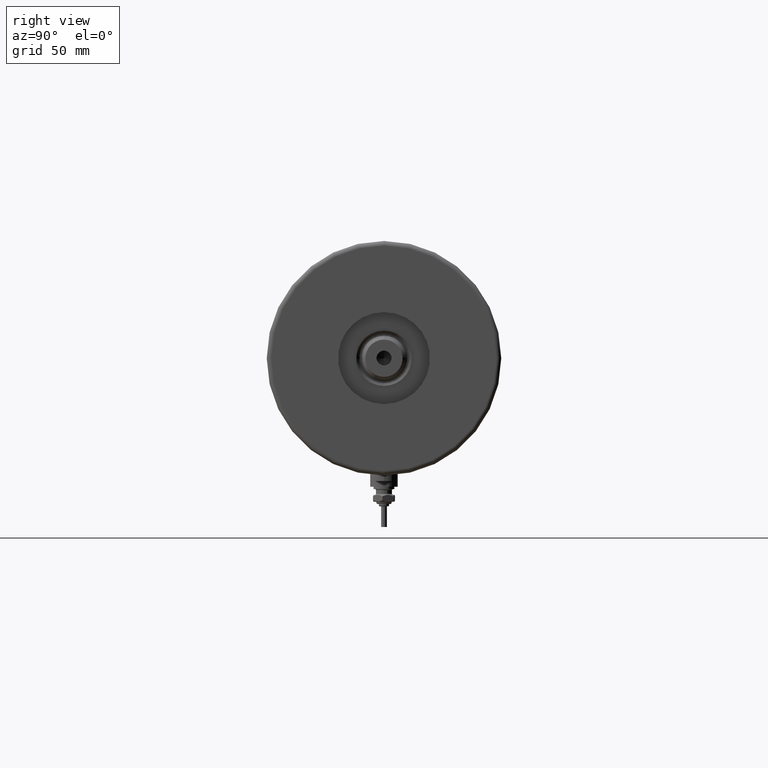
[diagram: clean part render]
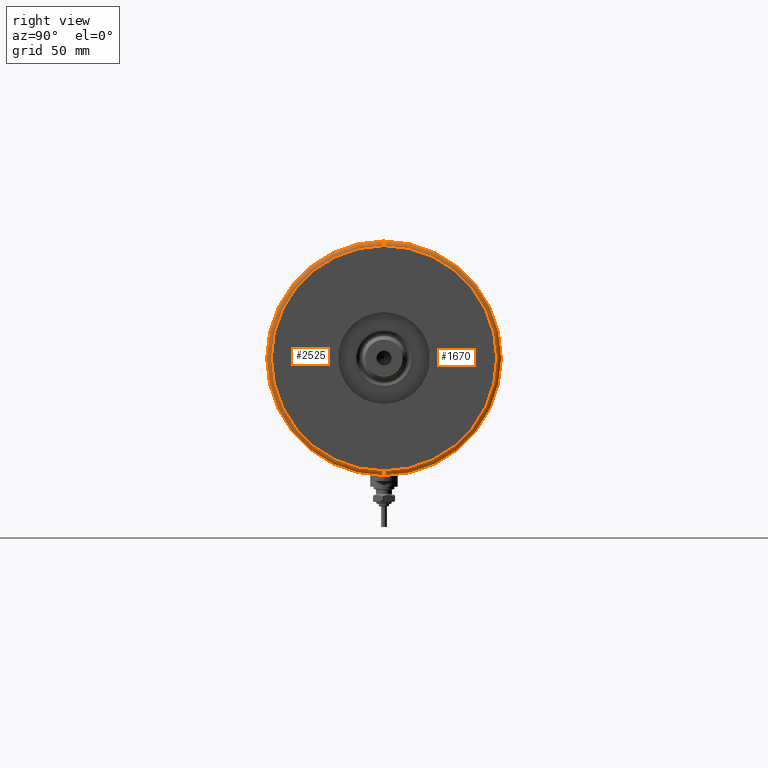
[diagram: same view with one multi-face feature highlighted, each face labeled with its STEP entity id]
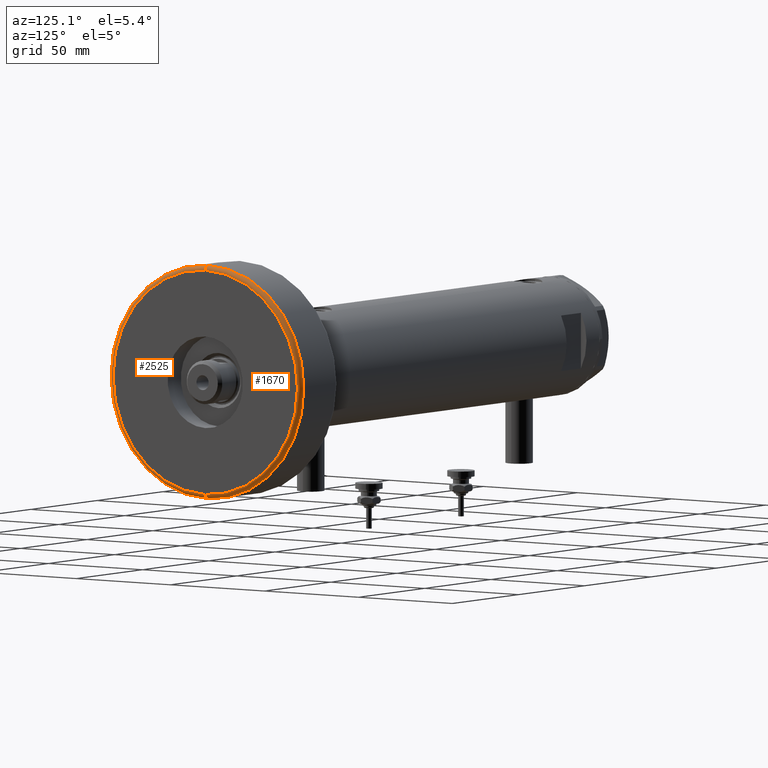
[diagram: same view with one multi-face feature highlighted, each face labeled with its STEP entity id]
A machine part, right view. The highlighted faces form ONE feature: a constant-radius fillet chain: 2 tangent blend faces with common blend radius 2 mm. The faces share edges in the B-rep.
A second angle (auxiliary view) of the same feature is appended — it is thin or edge-on in the first view.
Their STEP definitions:
[1] entity #1670 (Torus):
#199 = CIRCLE ( 'NONE', #3672, 2.000000000000001776 ) ;
#367 = VERTEX_POINT ( 'NONE', #2523 ) ;
#471 = DIRECTION ( 'NONE',  ( 0.000000000000000000, 0.000000000000000000, -1.000000000000000000 ) ) ;
#859 = AXIS2_PLACEMENT_3D ( 'NONE', #1368, #4504, #870 ) ;
#870 = DIRECTION ( 'NONE',  ( 1.000000000000000000, 0.000000000000000000, 0.000000000000000000 ) ) ;
#978 = CARTESIAN_POINT ( 'NONE',  ( 48.99999999999998579, 0.000000000000000000, 26.00000000000000355 ) ) ;
#1231 = DIRECTION ( 'NONE',  ( 1.224646799147353207E-16, 1.000000000000000000, -0.000000000000000000 ) ) ;
#1366 = AXIS2_PLACEMENT_3D ( 'NONE', #2901, #6563, #4453 ) ;
#1368 = CARTESIAN_POINT ( 'NONE',  ( 0.000000000000000000, 0.000000000000000000, 26.00000000000000355 ) ) ;
#1670 = ADVANCED_FACE ( 'NONE', ( #2346 ), #4198, .T. ) ;
#1730 = ORIENTED_EDGE ( 'NONE', *, *, #5157, .F. ) ;
#1987 = ORIENTED_EDGE ( 'NONE', *, *, #3282, .F. ) ;
#2346 = FACE_OUTER_BOUND ( 'NONE', #3834, .T. ) ;
#2523 = CARTESIAN_POINT ( 'NONE',  ( 50.99999999999999289, 6.245698675651499656E-15, 26.00000000000000355 ) ) ;
#2620 = EDGE_CURVE ( 'NONE', #5666, #3372, #199, .T. ) ;
#2901 = CARTESIAN_POINT ( 'NONE',  ( 0.000000000000000000, 0.000000000000000000, 26.00000000000000355 ) ) ;
#3037 = AXIS2_PLACEMENT_3D ( 'NONE', #978, #5108, #471 ) ;
#3143 = AXIS2_PLACEMENT_3D ( 'NONE', #3239, #4867, #3335 ) ;
#3220 = ORIENTED_EDGE ( 'NONE', *, *, #2620, .T. ) ;
#3239 = CARTESIAN_POINT ( 'NONE',  ( 0.000000000000000000, 0.000000000000000000, 28.00000000000000000 ) ) ;
#3282 = EDGE_CURVE ( 'NONE', #5060, #3372, #3885, .T. ) ;
#3335 = DIRECTION ( 'NONE',  ( 1.000000000000000000, 0.000000000000000000, 0.000000000000000000 ) ) ;
#3372 = VERTEX_POINT ( 'NONE', #6051 ) ;
#3672 = AXIS2_PLACEMENT_3D ( 'NONE', #3851, #1231, #5465 ) ;
#3834 = EDGE_LOOP ( 'NONE', ( #5642, #3220, #1987, #1730 ) ) ;
#3851 = CARTESIAN_POINT ( 'NONE',  ( -48.99999999999998579, 6.000769315822029359E-15, 26.00000000000000355 ) ) ;
#3885 = CIRCLE ( 'NONE', #3143, 48.99999999999998579 ) ;
#4004 = CIRCLE ( 'NONE', #859, 50.99999999999999289 ) ;
#4095 = CARTESIAN_POINT ( 'NONE',  ( -50.99999999999999289, 0.000000000000000000, 26.00000000000000355 ) ) ;
#4198 = TOROIDAL_SURFACE ( 'NONE', #1366, 48.99999999999998579, 2.000000000000000000 ) ;
#4453 = DIRECTION ( 'NONE',  ( 1.000000000000000000, 0.000000000000000000, 0.000000000000000000 ) ) ;
#4504 = DIRECTION ( 'NONE',  ( -0.000000000000000000, -0.000000000000000000, -1.000000000000000000 ) ) ;
#4867 = DIRECTION ( 'NONE',  ( 0.000000000000000000, 0.000000000000000000, 1.000000000000000000 ) ) ;
#5060 = VERTEX_POINT ( 'NONE', #5452 ) ;
#5095 = CIRCLE ( 'NONE', #3037, 2.000000000000001776 ) ;
#5108 = DIRECTION ( 'NONE',  ( 0.000000000000000000, -1.000000000000000000, 0.000000000000000000 ) ) ;
#5157 = EDGE_CURVE ( 'NONE', #367, #5060, #5095, .T. ) ;
#5445 = EDGE_CURVE ( 'NONE', #5666, #367, #4004, .T. ) ;
#5452 = CARTESIAN_POINT ( 'NONE',  ( 48.99999999999998579, 0.000000000000000000, 28.00000000000000000 ) ) ;
#5465 = DIRECTION ( 'NONE',  ( -1.000000000000000000, 1.224646799147353454E-16, 0.000000000000000000 ) ) ;
#5642 = ORIENTED_EDGE ( 'NONE', *, *, #5445, .F. ) ;
#5666 = VERTEX_POINT ( 'NONE', #4095 ) ;
#6051 = CARTESIAN_POINT ( 'NONE',  ( -48.99999999999998579, 6.123233995736764507E-15, 28.00000000000000000 ) ) ;
#6563 = DIRECTION ( 'NONE',  ( 0.000000000000000000, 0.000000000000000000, 1.000000000000000000 ) ) ;
[2] entity #2525 (Torus):
#199 = CIRCLE ( 'NONE', #3672, 2.000000000000001776 ) ;
#367 = VERTEX_POINT ( 'NONE', #2523 ) ;
#471 = DIRECTION ( 'NONE',  ( 0.000000000000000000, 0.000000000000000000, -1.000000000000000000 ) ) ;
#528 = CIRCLE ( 'NONE', #3151, 50.99999999999999289 ) ;
#972 = CARTESIAN_POINT ( 'NONE',  ( 0.000000000000000000, 0.000000000000000000, 26.00000000000000355 ) ) ;
#978 = CARTESIAN_POINT ( 'NONE',  ( 48.99999999999998579, 0.000000000000000000, 26.00000000000000355 ) ) ;
#1007 = CARTESIAN_POINT ( 'NONE',  ( 0.000000000000000000, 0.000000000000000000, 28.00000000000000000 ) ) ;
#1231 = DIRECTION ( 'NONE',  ( 1.224646799147353207E-16, 1.000000000000000000, -0.000000000000000000 ) ) ;
#1447 = DIRECTION ( 'NONE',  ( 1.000000000000000000, 0.000000000000000000, 0.000000000000000000 ) ) ;
#1737 = ORIENTED_EDGE ( 'NONE', *, *, #3574, .F. ) ;
#1922 = TOROIDAL_SURFACE ( 'NONE', #4317, 48.99999999999998579, 2.000000000000000000 ) ;
#2221 = EDGE_LOOP ( 'NONE', ( #2345, #1737, #4193, #3190 ) ) ;
#2345 = ORIENTED_EDGE ( 'NONE', *, *, #2620, .F. ) ;
#2523 = CARTESIAN_POINT ( 'NONE',  ( 50.99999999999999289, 6.245698675651499656E-15, 26.00000000000000355 ) ) ;
#2525 = ADVANCED_FACE ( 'NONE', ( #4681 ), #1922, .T. ) ;
#2620 = EDGE_CURVE ( 'NONE', #5666, #3372, #199, .T. ) ;
#2716 = DIRECTION ( 'NONE',  ( 0.000000000000000000, 0.000000000000000000, 1.000000000000000000 ) ) ;
#3037 = AXIS2_PLACEMENT_3D ( 'NONE', #978, #5108, #471 ) ;
#3151 = AXIS2_PLACEMENT_3D ( 'NONE', #972, #3198, #5787 ) ;
#3190 = ORIENTED_EDGE ( 'NONE', *, *, #3999, .F. ) ;
#3198 = DIRECTION ( 'NONE',  ( -0.000000000000000000, -0.000000000000000000, -1.000000000000000000 ) ) ;
#3372 = VERTEX_POINT ( 'NONE', #6051 ) ;
#3421 = DIRECTION ( 'NONE',  ( 1.000000000000000000, 0.000000000000000000, 0.000000000000000000 ) ) ;
#3574 = EDGE_CURVE ( 'NONE', #367, #5666, #528, .T. ) ;
#3672 = AXIS2_PLACEMENT_3D ( 'NONE', #3851, #1231, #5465 ) ;
#3753 = CARTESIAN_POINT ( 'NONE',  ( 0.000000000000000000, 0.000000000000000000, 26.00000000000000355 ) ) ;
#3851 = CARTESIAN_POINT ( 'NONE',  ( -48.99999999999998579, 6.000769315822029359E-15, 26.00000000000000355 ) ) ;
#3999 = EDGE_CURVE ( 'NONE', #3372, #5060, #4872, .T. ) ;
#4095 = CARTESIAN_POINT ( 'NONE',  ( -50.99999999999999289, 0.000000000000000000, 26.00000000000000355 ) ) ;
#4193 = ORIENTED_EDGE ( 'NONE', *, *, #5157, .T. ) ;
#4317 = AXIS2_PLACEMENT_3D ( 'NONE', #3753, #2716, #3421 ) ;
#4331 = AXIS2_PLACEMENT_3D ( 'NONE', #1007, #6120, #1447 ) ;
#4681 = FACE_OUTER_BOUND ( 'NONE', #2221, .T. ) ;
#4872 = CIRCLE ( 'NONE', #4331, 48.99999999999998579 ) ;
#5060 = VERTEX_POINT ( 'NONE', #5452 ) ;
#5095 = CIRCLE ( 'NONE', #3037, 2.000000000000001776 ) ;
#5108 = DIRECTION ( 'NONE',  ( 0.000000000000000000, -1.000000000000000000, 0.000000000000000000 ) ) ;
#5157 = EDGE_CURVE ( 'NONE', #367, #5060, #5095, .T. ) ;
#5452 = CARTESIAN_POINT ( 'NONE',  ( 48.99999999999998579, 0.000000000000000000, 28.00000000000000000 ) ) ;
#5465 = DIRECTION ( 'NONE',  ( -1.000000000000000000, 1.224646799147353454E-16, 0.000000000000000000 ) ) ;
#5666 = VERTEX_POINT ( 'NONE', #4095 ) ;
#5787 = DIRECTION ( 'NONE',  ( 1.000000000000000000, 0.000000000000000000, 0.000000000000000000 ) ) ;
#6051 = CARTESIAN_POINT ( 'NONE',  ( -48.99999999999998579, 6.123233995736764507E-15, 28.00000000000000000 ) ) ;
#6120 = DIRECTION ( 'NONE',  ( 0.000000000000000000, 0.000000000000000000, 1.000000000000000000 ) ) ;